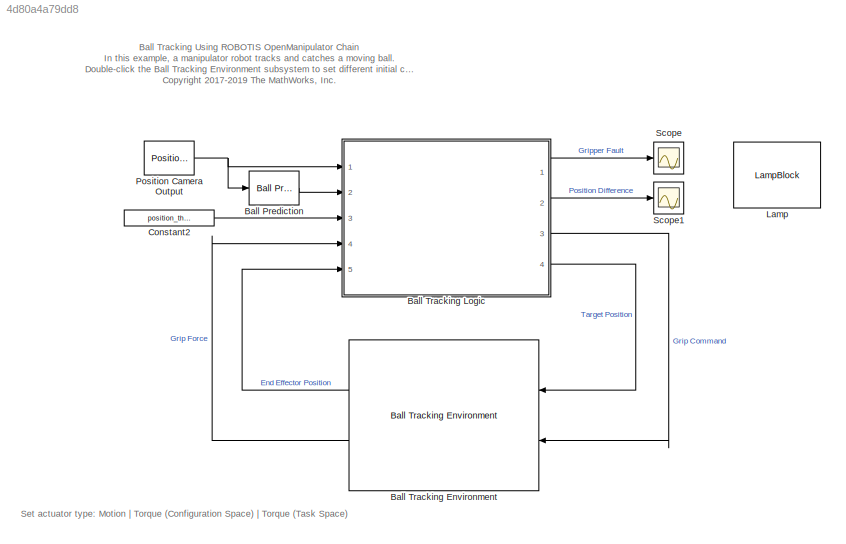
MODEL slx_4d80a4a79dd8
KIND model
CONFIG AbsTol = auto
CONFIG EnableMultiTasking = off
CONFIG FixedStep = auto
CONFIG MaxStep = auto
CONFIG MinStep = auto
CONFIG PreLoadFcn = openManipulatorParameters;
CONFIG RelTol = 1e-3
CONFIG SampleTimeConstraint = Unconstrained
CONFIG Solver = VariableStepAuto
CONFIG SolverName = VariableStepAuto
CONFIG StartTime = 0.0
CONFIG StopTime = 2
BLOCK [Reference] Ball Prediction  REF=OpenManipulatorLib/Ball Prediction
  Ports = [1, 1]
  SourceBlock = OpenManipulatorLib/Ball Prediction
  SourceType = Trajectory prediction in 2D
BLOCK [Reference] Ball Tracking Environment  REF=OpenManipulatorLib/Ball Tracking Environment
  Ports = [2, 2]
  SourceBlock = OpenManipulatorLib/Ball Tracking Environment
  SourceType = Ball Tracking Environment
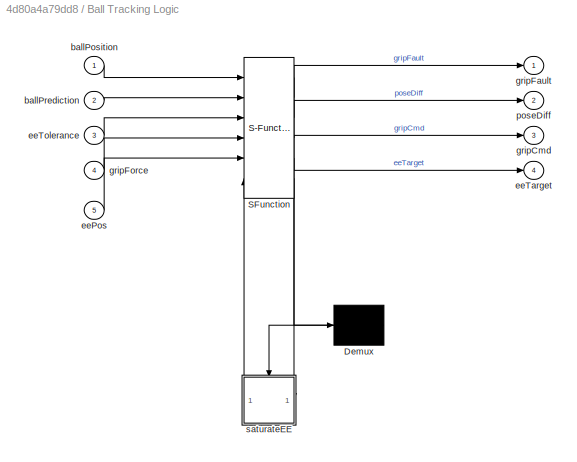
BLOCK [SubSystem] Ball Tracking Logic
  ErrorFcn = Stateflow.Translate.translate
  PermitHierarchicalResolution = ExplicitOnly
  Ports = [5, 4]
  RequestExecContextInheritance = off
  SFBlockType = Chart
  TreatAsAtomicUnit = on
BLOCK [Demux] Ball Tracking Logic/ Demux 
  Outputs = 1
  Ports = [1, 1]
BLOCK [S-Function] Ball Tracking Logic/ SFunction 
  EnableBusSupport = on
  FunctionName = sf_sfun
  Parameters = homePose
  PortCounts = [6 6]
  Ports = [6, 6]
  SFcnIsStateOwnerBlock = off
  SFunctionDeploymentMode = off
  Tag = Stateflow S-Function 2
BLOCK [Inport] Ball Tracking Logic/ballPosition
  IconDisplay = Port number
BLOCK [Inport] Ball Tracking Logic/ballPrediction
  IconDisplay = Port number
  Port = 2
BLOCK [Inport] Ball Tracking Logic/eePos
  IconDisplay = Port number
  Port = 5
BLOCK [Outport] Ball Tracking Logic/eeTarget
  IconDisplay = Port number
  Port = 4
  VectorParamsAs1DForOutWhenUnconnected = off
BLOCK [Inport] Ball Tracking Logic/eeTolerance
  IconDisplay = Port number
  Port = 3
BLOCK [Outport] Ball Tracking Logic/gripCmd
  IconDisplay = Port number
  Port = 3
  VectorParamsAs1DForOutWhenUnconnected = off
BLOCK [Outport] Ball Tracking Logic/gripFault
  IconDisplay = Port number
  VectorParamsAs1DForOutWhenUnconnected = off
BLOCK [Inport] Ball Tracking Logic/gripForce
  IconDisplay = Port number
  Port = 4
BLOCK [Outport] Ball Tracking Logic/poseDiff
  IconDisplay = Port number
  Port = 2
  VectorParamsAs1DForOutWhenUnconnected = off
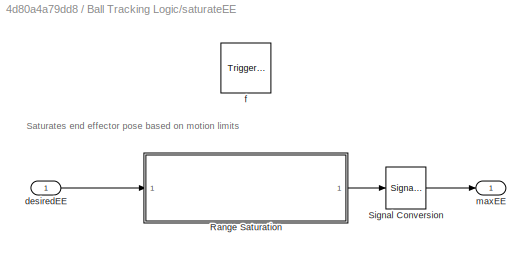
BLOCK [SubSystem] Ball Tracking Logic/saturateEE
  Ports = [1, 1, 0, 1]
  PreDeleteFcn = Stateflow.SLINSF.SimulinkMan.removePreDeleteFcn
  RequestExecContextInheritance = off
  UndoDeleteFcn = Stateflow.SLINSF.SimulinkMan.restorePreDeleteFcn
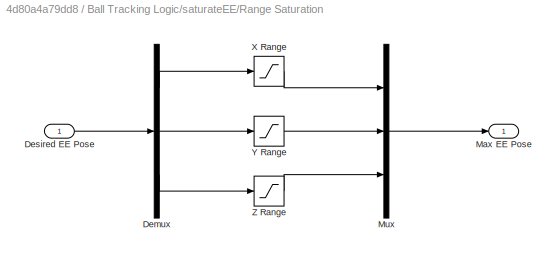
BLOCK [SubSystem] Ball Tracking Logic/saturateEE/Range Saturation
  Ports = [1, 1]
  RequestExecContextInheritance = off
BLOCK [Demux] Ball Tracking Logic/saturateEE/Range Saturation/Demux
  DisplayOption = bar
  Outputs = 3
  Ports = [1, 3]
BLOCK [Inport] Ball Tracking Logic/saturateEE/Range Saturation/Desired EE Pose
  IconDisplay = Port number
BLOCK [Outport] Ball Tracking Logic/saturateEE/Range Saturation/Max EE Pose
  IconDisplay = Port number
  VectorParamsAs1DForOutWhenUnconnected = off
BLOCK [Mux] Ball Tracking Logic/saturateEE/Range Saturation/Mux
  DisplayOption = bar
  Inputs = 3
  Ports = [3, 1]
BLOCK [Saturate] Ball Tracking Logic/saturateEE/Range Saturation/X Range
  InputPortMap = u0
  LowerLimit = xLower
  Ports = [1, 1]
  UpperLimit = xUpper
BLOCK [Saturate] Ball Tracking Logic/saturateEE/Range Saturation/Y Range
  InputPortMap = u0
  LowerLimit = yLower
  Ports = [1, 1]
  UpperLimit = yUpper
BLOCK [Saturate] Ball Tracking Logic/saturateEE/Range Saturation/Z Range
  InputPortMap = u0
  LowerLimit = zLower
  Ports = [1, 1]
  UpperLimit = zUpper
BLOCK [SignalConversion] Ball Tracking Logic/saturateEE/Signal Conversion
  OverrideOpt = off
BLOCK [Inport] Ball Tracking Logic/saturateEE/desiredEE
  IconDisplay = Port number
  OutDataTypeStr = double
  PortDimensions = 3
  SignalType = real
  VarSizeSig = No
BLOCK [TriggerPort] Ball Tracking Logic/saturateEE/f
  CopyFcn = Stateflow.SLINSF.SimulinkMan.removeBlockPreDeleteFcn
  Ports = []
  PreDeleteFcn = Stateflow.SLINSF.SimulinkMan.unsafePredeleteFcn
  StatesWhenEnabling = held
  TriggerType = function-call
  VariantControl = (inherit)
BLOCK [Outport] Ball Tracking Logic/saturateEE/maxEE
  IconDisplay = Port number
  VectorParamsAs1DForOutWhenUnconnected = off
BLOCK [Constant] Constant2
  Value = position_threshold
BLOCK [LampBlock] Lamp
BLOCK [Reference] Position Camera Output  REF=OpenManipulatorLib/Position Camera Output
  Ports = [0, 1]
  SourceBlock = OpenManipulatorLib/Position Camera Output
BLOCK [Scope] Scope
  Floating = off
  NumInputPorts = 1
  Ports = [1]
  ScopeSpecificationString = Simulink.scopes.TimeScopeBlockCfg('CurrentConfiguration', extmgr.ConfigurationSet(extmgr.Configuration('Core','General UI',true),extmgr.Configuration('Core','Source UI',true),extmgr.Configuration('Sources','WiredSimulink',true,'DataLoggingVariableName','ScopeData1'),extmgr.Configuration('Visuals','Time Domain',true,'SerializedDisplays',{struct('MinYLimReal','-1.00000','MaxYLimReal','1.00000','YLab...<+1445ch>
BLOCK [Scope] Scope1
  Floating = off
  NumInputPorts = 1
  Ports = [1]
  ScopeSpecificationString = Simulink.scopes.TimeScopeBlockCfg('CurrentConfiguration', extmgr.ConfigurationSet(extmgr.Configuration('Core','General UI',true),extmgr.Configuration('Core','Source UI',true),extmgr.Configuration('Sources','WiredSimulink',true,'DataLoggingVariableName','ScopeData2'),extmgr.Configuration('Visuals','Time Domain',true,'SerializedDisplays',{struct('MinYLimReal','-0.04655','MaxYLimReal','0.41898','YLab...<+1501ch>
ANNOTATION (root): Ball Tracking Using ROBOTIS OpenManipulator Chain In this example, a manipulator robot tracks and catches a moving ball. Double-click the Ball Tracking Environment subsystem to set different initial conditions for the ball. <copyright redacted>
ANNOTATION (root): Set actuator type: Motion | Torque (Configuration Space) | Torque (Task Space)
ANNOTATION Ball Tracking Logic/saturateEE: Saturates end effector pose based on motion limits
LINE Ball Prediction:1 -> Ball Tracking Logic:2
LINE Ball Tracking Environment:1 -> Ball Tracking Logic:5
LINE Ball Tracking Environment:2 -> Ball Tracking Logic:4
LINE Ball Tracking Logic:1 -> Scope:1
LINE Ball Tracking Logic:2 -> Scope1:1
LINE Ball Tracking Logic:3 -> Ball Tracking Environment:2
LINE Ball Tracking Logic:4 -> Ball Tracking Environment:1
LINE Constant2:1 -> Ball Tracking Logic:3
NET Position Camera Output:1 -> Ball Prediction:1, Ball Tracking Logic:1
note: NET lines group one-source signal fan-out (src -> all destinations, sorted); 1:1 wires keep LINE
CHART Ball Tracking Logic states=13 transitions=19
  STATE_LABEL 'Gripper'
  STATE_LABEL 'InTransition'
  STATE_LABEL 'CloseGripper\nentry:\ncounts=0;\ngripCmd=1;\nduring:\ncounts=counts+1;\n'
  STATE_LABEL 'OpenGripper\nentry:\ncounts=0;\ngripCmd=-1;\nduring:\ncounts=counts+1;\n'
  STATE_LABEL 'GripperFault\nentry: gripFault=1;'
  STATE_LABEL '{gripFault=0;}'
  STATE_LABEL '[~detectBall(0.5)]\n{RobotMotion.GripSet}'
  STATE_LABEL '[detectBall(0.5)]\n{RobotMotion.GripSet}'
  STATE_LABEL 'SetGrip'
  STATE_LABEL '[grabBall]'
  STATE_LABEL '[counts>=10]'
  STATE_LABEL '[counts>=10]'
  STATE_LABEL '{gripCmd=0;}'
  STATE_LABEL 'InTransition'
  STATE_LABEL 'CloseGripper\nentry:\ncounts=0;\ngripCmd=1;\nduring:\ncounts=counts+1;\n'
  STATE_LABEL 'OpenGripper\nentry:\ncounts=0;\ngripCmd=-1;\nduring:\ncounts=counts+1;\n'
  STATE_LABEL 'GripperFault\nentry: gripFault=1;'
  STATE_LABEL 'RobotMotion\nentry, during:\nposeDiff = abs(eePos-ballPosition);'
  STATE_LABEL 'WaitForPrediction\nentry:\neeTarget = homePose;\ngrabBall=0;\n'
  STATE_LABEL 'FollowBall\nentry,during:\neeTarget=saturateEE(ballPrediction);\n'
  STATE_LABEL 'GrabBall\nentry:\ngrabBall=1;\nGripper.SetGrip\nentry,during:\neeTarget=saturateEE(ballPrediction);'
  STATE_LABEL 'GoHome\nentry,during:\neeTarget= 0.5*(eeTarget+homePose);'
  STATE_LABEL '[all(ballPrediction ~=0)]'
  STATE_LABEL '[any(ballPrediction == 0)]'
  STATE_LABEL '[checkBallTolerance && all(ballPrediction ~=0)]'
  STATE_LABEL 'GripSet'
  STATE_LABEL 'WaitForPrediction\nentry:\neeTarget = homePose;\ngrabBall=0;\n'
  STATE_LABEL 'FollowBall\nentry,during:\neeTarget=saturateEE(ballPrediction);\n'
  STATE_LABEL 'GrabBall\nentry:\ngrabBall=1;\nGripper.SetGrip\nentry,during:\neeTarget=saturateEE(ballPrediction);'
  STATE_LABEL 'GoHome\nentry,during:\neeTarget= 0.5*(eeTarget+homePose);'
  STATE_LABEL 'reachedBall = checkBallTolerance'
  STATE_LABEL 'SCRIPT:\nfunction reachedBall = checkBallTolerance\n% Checks if the end effector and ball are within a specified position tolerance\n\nif ballPosition(3) < 0.2\n reachedBall=abs(eePos(1)-ballPosition(1))<eeTolerance(1) ...\n    && abs(eePos(2)-ballPosition(2))<eeTolerance(2)...\n    && abs(eePos(3)-ballPosition(3))<eeTolerance(3);\nelse % Use higher tolerance on Z if ball is airborne\n     reachedBall=abs(...<+165ch>'
  STATE_LABEL 'isBall = detectBall(threshold)'
  STATE_LABEL 'SCRIPT:\nfunction isBall = detectBall(threshold)\n% Checks the presence of a ball based on a minimum force threshold\n\nisBall = all(abs(gripForce)>threshold);'
  STATE_LABEL 'maxEE = saturateEE(desiredEE)'
